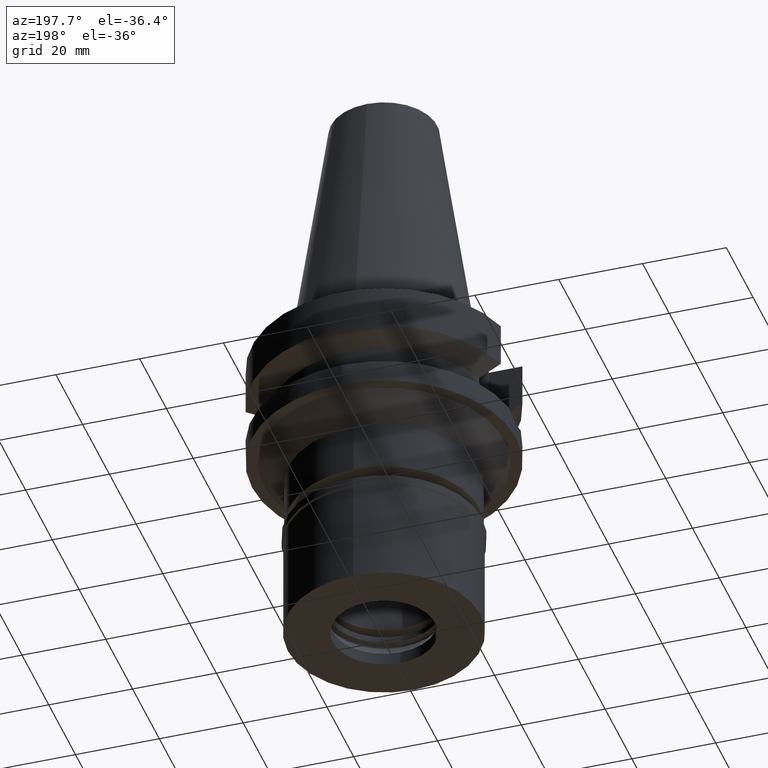
[diagram: clean part render]
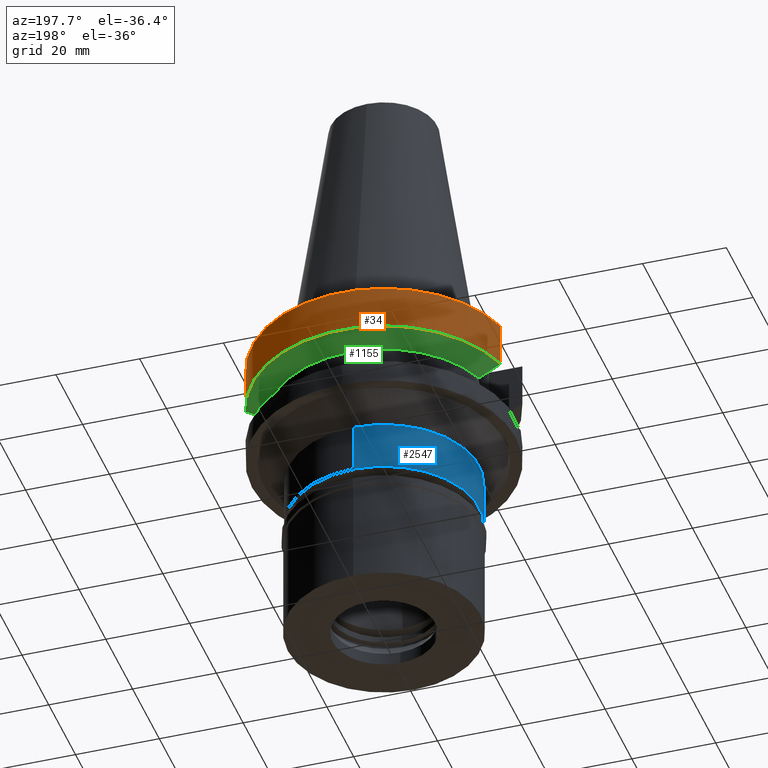
[diagram: same view with three faces highlighted in distinct colors, each labeled with its STEP entity id]
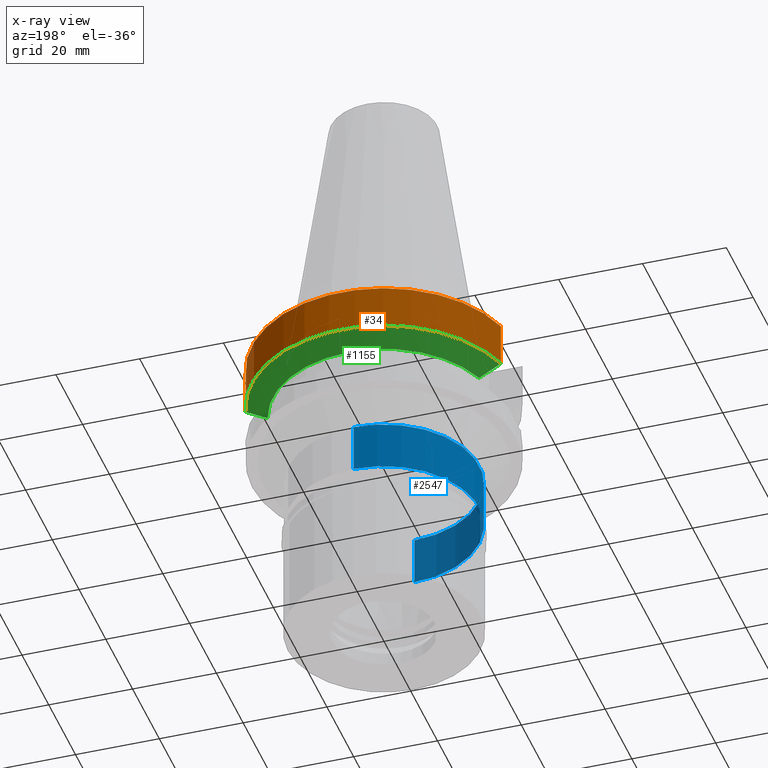
[diagram: x-ray of the same camera — body ghosted, the three highlighted faces saturated]
A machine part, auxiliary view with three faces highlighted in distinct colors.
The next image is the same camera in x-ray (body ghosted, the three faces saturated) — at least one of them is partly hidden behind the body in this view.
Their STEP definitions:

[orange] entity #34 — the highlighted cylindrical surface (partial cylindrical patch) has radius 31.5 mm, axis along (0, 0, -1).
#34 = ADVANCED_FACE ( 'NONE', ( #60 ), #956, .T. ) ;
#60 = FACE_OUTER_BOUND ( 'NONE', #359, .T. ) ;
#67 = VERTEX_POINT ( 'NONE', #1164 ) ;
#104 = CARTESIAN_POINT ( 'NONE',  ( -30.45402162346999830, 8.050004158840000201, -11.56546819162000084 ) ) ;
#187 = VERTEX_POINT ( 'NONE', #104 ) ;
#220 = EDGE_CURVE ( 'NONE', #1722, #67, #1933, .T. ) ;
#305 = DIRECTION ( 'NONE',  ( 0.0000000000000000000, 1.000000000000000000, 0.0000000000000000000 ) ) ;
#359 = EDGE_LOOP ( 'NONE', ( #2532, #1965, #2051, #888 ) ) ;
#377 = DIRECTION ( 'NONE',  ( 1.040483719388018092E-07, 3.936257341509070673E-07, -0.9999999999999171774 ) ) ;
#383 = EDGE_CURVE ( 'NONE', #580, #187, #1776, .T. ) ;
#575 = DIRECTION ( 'NONE',  ( 0.0000000000000000000, 0.0000000000000000000, 1.000000000000000000 ) ) ;
#579 = AXIS2_PLACEMENT_3D ( 'NONE', #802, #575, #1507 ) ;
#580 = VERTEX_POINT ( 'NONE', #2588 ) ;
#759 = DIRECTION ( 'NONE',  ( 0.0000000000000000000, 0.0000000000000000000, -1.000000000000000000 ) ) ;
#802 = CARTESIAN_POINT ( 'NONE',  ( 0.0000000000000000000, 0.0000000000000000000, -11.56550565266999975 ) ) ;
#888 = ORIENTED_EDGE ( 'NONE', *, *, #1891, .T. ) ;
#954 = CARTESIAN_POINT ( 'NONE',  ( 0.0000000000000000000, 0.0000000000000000000, -1.000000000000000000 ) ) ;
#956 = CYLINDRICAL_SURFACE ( 'NONE', #2739, 31.50000000000000000 ) ;
#970 = CARTESIAN_POINT ( 'NONE',  ( 0.0000000000000000000, 0.0000000000000000000, 0.0000000000000000000 ) ) ;
#1057 = CARTESIAN_POINT ( 'NONE',  ( 30.45402291605999778, 8.049999268812999986, -11.56551223831000108 ) ) ;
#1063 = VECTOR ( 'NONE', #2882, 1000.000000000000227 ) ;
#1116 = AXIS2_PLACEMENT_3D ( 'NONE', #954, #759, #305 ) ;
#1161 = CIRCLE ( 'NONE', #579, 31.50000000000000000 ) ;
#1164 = CARTESIAN_POINT ( 'NONE',  ( 30.45402272279000044, 8.050000000000000711, -1.000000000000000000 ) ) ;
#1507 = DIRECTION ( 'NONE',  ( 0.0000000000000000000, 1.000000000000000000, 0.0000000000000000000 ) ) ;
#1656 = CIRCLE ( 'NONE', #1116, 31.50000000000000000 ) ;
#1673 = DIRECTION ( 'NONE',  ( 0.0000000000000000000, -1.000000000000000000, 0.0000000000000000000 ) ) ;
#1686 = CARTESIAN_POINT ( 'NONE',  ( 30.45402291605999778, 8.049999268812999986, -11.56551223831000108 ) ) ;
#1722 = VERTEX_POINT ( 'NONE', #1686 ) ;
#1776 = LINE ( 'NONE', #2306, #2439 ) ;
#1891 = EDGE_CURVE ( 'NONE', #1722, #187, #1161, .T. ) ;
#1902 = DIRECTION ( 'NONE',  ( 0.0000000000000000000, 0.0000000000000000000, -1.000000000000000000 ) ) ;
#1933 = LINE ( 'NONE', #1057, #1063 ) ;
#1965 = ORIENTED_EDGE ( 'NONE', *, *, #2312, .T. ) ;
#2051 = ORIENTED_EDGE ( 'NONE', *, *, #220, .F. ) ;
#2306 = CARTESIAN_POINT ( 'NONE',  ( -30.45402272279000044, 8.050000000000000711, -1.000000000000000000 ) ) ;
#2312 = EDGE_CURVE ( 'NONE', #580, #67, #1656, .T. ) ;
#2439 = VECTOR ( 'NONE', #377, 1000.000000000000114 ) ;
#2532 = ORIENTED_EDGE ( 'NONE', *, *, #383, .F. ) ;
#2588 = CARTESIAN_POINT ( 'NONE',  ( -30.45402272279000044, 8.050000000000000711, -1.000000000000000000 ) ) ;
#2739 = AXIS2_PLACEMENT_3D ( 'NONE', #970, #1902, #1673 ) ;
#2882 = DIRECTION ( 'NONE',  ( -1.829310043821989608E-08, 6.920501880590960594E-08, 0.9999999999999973355 ) ) ;

[blue] entity #2547 — the highlighted cylindrical surface (partial cylindrical patch) has radius 22.75 mm, axis along (0, 0, -1).
#29 = DIRECTION ( 'NONE',  ( 0.0000000000000000000, -1.000000000000000000, 0.0000000000000000000 ) ) ;
#46 = CARTESIAN_POINT ( 'NONE',  ( 0.0000000000000000000, -22.75000000000000000, -33.00000000000000000 ) ) ;
#94 = ORIENTED_EDGE ( 'NONE', *, *, #963, .T. ) ;
#145 = EDGE_CURVE ( 'NONE', #1824, #1803, #188, .T. ) ;
#188 = CIRCLE ( 'NONE', #2242, 22.75000000000000000 ) ;
#202 = ORIENTED_EDGE ( 'NONE', *, *, #145, .T. ) ;
#437 = CYLINDRICAL_SURFACE ( 'NONE', #628, 22.75000000000000000 ) ;
#448 = VERTEX_POINT ( 'NONE', #1130 ) ;
#486 = CARTESIAN_POINT ( 'NONE',  ( 0.0000000000000000000, 0.0000000000000000000, -33.00000000000000000 ) ) ;
#507 = DIRECTION ( 'NONE',  ( 0.0000000000000000000, 0.0000000000000000000, -1.000000000000000000 ) ) ;
#628 = AXIS2_PLACEMENT_3D ( 'NONE', #2558, #1595, #937 ) ;
#833 = DIRECTION ( 'NONE',  ( 0.0000000000000000000, 0.0000000000000000000, -1.000000000000000000 ) ) ;
#885 = EDGE_CURVE ( 'NONE', #1824, #448, #1907, .T. ) ;
#937 = DIRECTION ( 'NONE',  ( 0.0000000000000000000, -1.000000000000000000, 0.0000000000000000000 ) ) ;
#963 = EDGE_CURVE ( 'NONE', #1048, #448, #2606, .T. ) ;
#1048 = VERTEX_POINT ( 'NONE', #1503 ) ;
#1130 = CARTESIAN_POINT ( 'NONE',  ( 0.0000000000000000000, -22.75000000000000000, -44.79999999999999716 ) ) ;
#1312 = EDGE_CURVE ( 'NONE', #1803, #1048, #2498, .T. ) ;
#1367 = AXIS2_PLACEMENT_3D ( 'NONE', #1890, #1664, #2612 ) ;
#1503 = CARTESIAN_POINT ( 'NONE',  ( 0.0000000000000000000, 22.75000000000000000, -44.79999999999999716 ) ) ;
#1595 = DIRECTION ( 'NONE',  ( 0.0000000000000000000, 0.0000000000000000000, -1.000000000000000000 ) ) ;
#1664 = DIRECTION ( 'NONE',  ( 0.0000000000000000000, 0.0000000000000000000, 1.000000000000000000 ) ) ;
#1803 = VERTEX_POINT ( 'NONE', #1950 ) ;
#1824 = VERTEX_POINT ( 'NONE', #2235 ) ;
#1890 = CARTESIAN_POINT ( 'NONE',  ( 0.0000000000000000000, 0.0000000000000000000, -44.79999999999999716 ) ) ;
#1907 = LINE ( 'NONE', #46, #2452 ) ;
#1950 = CARTESIAN_POINT ( 'NONE',  ( 0.0000000000000000000, 22.75000000000000000, -33.00000000000000000 ) ) ;
#2063 = CARTESIAN_POINT ( 'NONE',  ( 0.0000000000000000000, 22.75000000000000000, -33.00000000000000000 ) ) ;
#2109 = VECTOR ( 'NONE', #833, 1000.000000000000000 ) ;
#2235 = CARTESIAN_POINT ( 'NONE',  ( 0.0000000000000000000, -22.75000000000000000, -33.00000000000000000 ) ) ;
#2242 = AXIS2_PLACEMENT_3D ( 'NONE', #486, #2326, #29 ) ;
#2280 = ORIENTED_EDGE ( 'NONE', *, *, #1312, .T. ) ;
#2326 = DIRECTION ( 'NONE',  ( 0.0000000000000000000, 0.0000000000000000000, -1.000000000000000000 ) ) ;
#2452 = VECTOR ( 'NONE', #507, 1000.000000000000000 ) ;
#2498 = LINE ( 'NONE', #2063, #2109 ) ;
#2547 = ADVANCED_FACE ( 'NONE', ( #2804 ), #437, .T. ) ;
#2558 = CARTESIAN_POINT ( 'NONE',  ( 0.0000000000000000000, 0.0000000000000000000, 0.0000000000000000000 ) ) ;
#2570 = EDGE_LOOP ( 'NONE', ( #94, #3025, #202, #2280 ) ) ;
#2606 = CIRCLE ( 'NONE', #1367, 22.75000000000000000 ) ;
#2612 = DIRECTION ( 'NONE',  ( 0.0000000000000000000, 1.000000000000000000, 0.0000000000000000000 ) ) ;
#2804 = FACE_OUTER_BOUND ( 'NONE', #2570, .T. ) ;
#3025 = ORIENTED_EDGE ( 'NONE', *, *, #885, .F. ) ;

[green] entity #1155 — the highlighted conical surface has half-angle 60 deg.
#86 = CARTESIAN_POINT ( 'NONE',  ( 25.24772413898999801, 8.049995391397999356, -14.45229221434999900 ) ) ;
#104 = CARTESIAN_POINT ( 'NONE',  ( -30.45402162346999830, 8.050004158840000201, -11.56546819162000084 ) ) ;
#187 = VERTEX_POINT ( 'NONE', #104 ) ;
#406 = EDGE_LOOP ( 'NONE', ( #2723, #1263, #1448, #846 ) ) ;
#575 = DIRECTION ( 'NONE',  ( 0.0000000000000000000, 0.0000000000000000000, 1.000000000000000000 ) ) ;
#579 = AXIS2_PLACEMENT_3D ( 'NONE', #802, #575, #1507 ) ;
#600 = EDGE_CURVE ( 'NONE', #2552, #187, #2474, .T. ) ;
#802 = CARTESIAN_POINT ( 'NONE',  ( 0.0000000000000000000, 0.0000000000000000000, -11.56550565266999975 ) ) ;
#846 = ORIENTED_EDGE ( 'NONE', *, *, #600, .T. ) ;
#882 = VERTEX_POINT ( 'NONE', #2842 ) ;
#1155 = ADVANCED_FACE ( 'NONE', ( #1939 ), #2554, .T. ) ;
#1161 = CIRCLE ( 'NONE', #579, 31.50000000000000000 ) ;
#1222 = CARTESIAN_POINT ( 'NONE',  ( 26.83754589215579500, 8.049990772587381826, -13.57774903672709321 ) ) ;
#1263 = ORIENTED_EDGE ( 'NONE', *, *, #2735, .T. ) ;
#1448 = ORIENTED_EDGE ( 'NONE', *, *, #1671, .F. ) ;
#1468 = DIRECTION ( 'NONE',  ( 0.0000000000000000000, 0.0000000000000000000, 1.000000000000000000 ) ) ;
#1472 = CARTESIAN_POINT ( 'NONE',  ( 0.0000000000000000000, 0.0000000000000000000, -14.45225699861000024 ) ) ;
#1507 = DIRECTION ( 'NONE',  ( 0.0000000000000000000, 1.000000000000000000, 0.0000000000000000000 ) ) ;
#1671 = EDGE_CURVE ( 'NONE', #2552, #882, #2005, .T. ) ;
#1686 = CARTESIAN_POINT ( 'NONE',  ( 30.45402291605999778, 8.049999268812999986, -11.56551223831000108 ) ) ;
#1722 = VERTEX_POINT ( 'NONE', #1686 ) ;
#1850 = CARTESIAN_POINT ( 'NONE',  ( -28.57295828620687672, 8.050008312625644535, -12.61547503751728705 ) ) ;
#1891 = EDGE_CURVE ( 'NONE', #1722, #187, #1161, .T. ) ;
#1939 = FACE_OUTER_BOUND ( 'NONE', #406, .T. ) ;
#2005 = CIRCLE ( 'NONE', #2304, 26.50000000000000711 ) ;
#2116 = CARTESIAN_POINT ( 'NONE',  ( -25.24772216909000377, 8.050001569732000206, -14.45224500447000082 ) ) ;
#2146 = CARTESIAN_POINT ( 'NONE',  ( -26.83758102788027600, 8.050003142852821370, -13.57772760840842174 ) ) ;
#2179 = CARTESIAN_POINT ( 'NONE',  ( 30.45402291605999778, 8.049999268812999986, -11.56551223831000108 ) ) ;
#2223 = DIRECTION ( 'NONE',  ( 0.0000000000000000000, 1.000000000000000000, 0.0000000000000000000 ) ) ;
#2304 = AXIS2_PLACEMENT_3D ( 'NONE', #1472, #2417, #2648 ) ;
#2380 = CARTESIAN_POINT ( 'NONE',  ( -30.45402162346999830, 8.050004158840000201, -11.56546819162000084 ) ) ;
#2417 = DIRECTION ( 'NONE',  ( 0.0000000000000000000, 0.0000000000000000000, -1.000000000000000000 ) ) ;
#2474 = B_SPLINE_CURVE_WITH_KNOTS ( 'NONE', 3,
 ( #2816, #2146, #1850, #2380 ),
 .UNSPECIFIED., .F., .F.,
 ( 4, 4 ),
 ( 0.0000000000000000000, 1.000000000000000000 ),
 .UNSPECIFIED. ) ;
#2552 = VERTEX_POINT ( 'NONE', #2116 ) ;
#2554 = CONICAL_SURFACE ( 'NONE', #2949, 29.00000000000000000, 1.047197551196400456 ) ;
#2614 = B_SPLINE_CURVE_WITH_KNOTS ( 'NONE', 3,
 ( #2179, #2895, #1222, #86 ),
 .UNSPECIFIED., .F., .F.,
 ( 4, 4 ),
 ( 0.0000000000000000000, 1.000000000000000000 ),
 .UNSPECIFIED. ) ;
#2648 = DIRECTION ( 'NONE',  ( -0.9527442516822307583, 0.3037735849057093818, 0.0000000000000000000 ) ) ;
#2723 = ORIENTED_EDGE ( 'NONE', *, *, #1891, .F. ) ;
#2735 = EDGE_CURVE ( 'NONE', #1722, #882, #2614, .T. ) ;
#2816 = CARTESIAN_POINT ( 'NONE',  ( -25.24772216909000377, 8.050001569732000206, -14.45224500447000082 ) ) ;
#2842 = CARTESIAN_POINT ( 'NONE',  ( 25.24772413898999801, 8.049995391397999356, -14.45229221434999900 ) ) ;
#2890 = CARTESIAN_POINT ( 'NONE',  ( 0.0000000000000000000, 0.0000000000000000000, -13.00888132564000088 ) ) ;
#2895 = CARTESIAN_POINT ( 'NONE',  ( 28.57292303220847529, 8.049998538576042861, -12.61549620223704693 ) ) ;
#2949 = AXIS2_PLACEMENT_3D ( 'NONE', #2890, #1468, #2223 ) ;